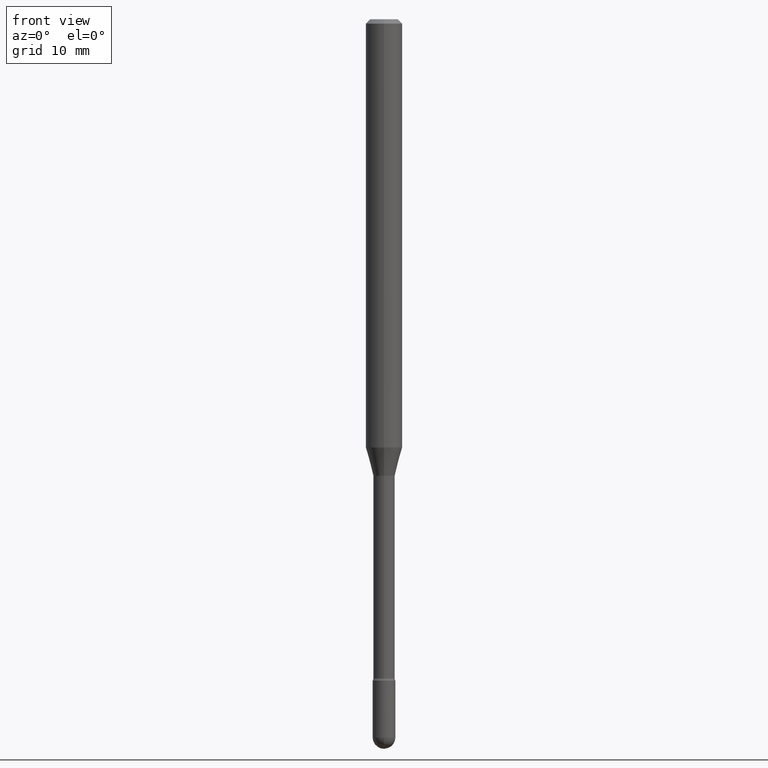
[diagram: clean part render]
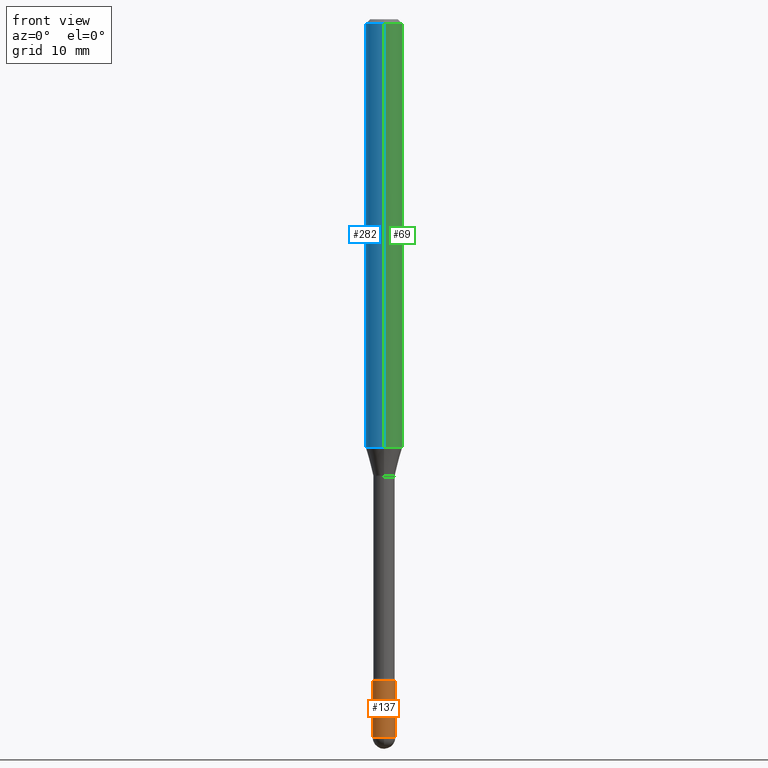
[diagram: same view with three faces highlighted in distinct colors, each labeled with its STEP entity id]
A machine part, front view with three faces highlighted in distinct colors.
Their STEP definitions:

[orange] entity #137 — the highlighted cylindrical surface (edge-blend (fillet) strip) has radius 0.9906 mm, axis along (-0, 0, 1).
#24 = VECTOR ( 'NONE', #52, 39.37007874015748143 ) ;
#51 = CARTESIAN_POINT ( 'NONE',  ( 0.000000000000000000, 0.000000000000000000, 0.000000000000000000 ) ) ;
#52 = DIRECTION ( 'NONE',  ( -2.445468806185136877E-29, 3.491481338843145188E-15, 1.000000000000000000 ) ) ;
#68 = CARTESIAN_POINT ( 'NONE',  ( 6.018298732021620914E-29, -8.592535574892981353E-15, -2.460999999999999854 ) ) ;
#75 = DIRECTION ( 'NONE',  ( -2.445468806185136877E-29, 3.491481338843145188E-15, 1.000000000000000000 ) ) ;
#77 = VERTEX_POINT ( 'NONE', #498 ) ;
#84 = DIRECTION ( 'NONE',  ( 1.000000000000000000, -6.982962677686258033E-15, 0.000000000000000000 ) ) ;
#109 = EDGE_CURVE ( 'NONE', #77, #175, #508, .T. ) ;
#120 = DIRECTION ( 'NONE',  ( 1.000000000000000000, -6.982962677686282488E-15, 0.000000000000000000 ) ) ;
#126 = LINE ( 'NONE', #247, #482 ) ;
#128 = VERTEX_POINT ( 'NONE', #183 ) ;
#137 = ADVANCED_FACE ( 'NONE', ( #355 ), #536, .T. ) ;
#170 = ORIENTED_EDGE ( 'NONE', *, *, #252, .T. ) ;
#175 = VERTEX_POINT ( 'NONE', #387 ) ;
#183 = CARTESIAN_POINT ( 'NONE',  ( -2.771116669463794638E-16, -0.03900000000000868744, -2.460999999999999854 ) ) ;
#208 = EDGE_CURVE ( 'NONE', #219, #262, #126, .T. ) ;
#215 = AXIS2_PLACEMENT_3D ( 'NONE', #478, #441, #84 ) ;
#219 = VERTEX_POINT ( 'NONE', #553 ) ;
#229 = CIRCLE ( 'NONE', #357, 0.03900000000000000688 ) ;
#233 = ORIENTED_EDGE ( 'NONE', *, *, #345, .T. ) ;
#247 = CARTESIAN_POINT ( 'NONE',  ( -0.03899999999999999994, 2.771116669464390721E-16, -1.918384685199413078E-30 ) ) ;
#252 = EDGE_CURVE ( 'NONE', #128, #77, #229, .T. ) ;
#262 = VERTEX_POINT ( 'NONE', #470 ) ;
#312 = EDGE_CURVE ( 'NONE', #262, #175, #419, .T. ) ;
#316 = ORIENTED_EDGE ( 'NONE', *, *, #109, .T. ) ;
#319 = CARTESIAN_POINT ( 'NONE',  ( 0.03899999999999999994, -2.723355444297643682E-16, 1.901708942560414931E-30 ) ) ;
#345 = EDGE_CURVE ( 'NONE', #219, #128, #513, .T. ) ;
#355 = FACE_OUTER_BOUND ( 'NONE', #554, .T. ) ;
#356 = AXIS2_PLACEMENT_3D ( 'NONE', #51, #363, #447 ) ;
#357 = AXIS2_PLACEMENT_3D ( 'NONE', #68, #549, #120 ) ;
#363 = DIRECTION ( 'NONE',  ( -2.445468806185136597E-29, 3.491481338843145583E-15, 1.000000000000000000 ) ) ;
#387 = CARTESIAN_POINT ( 'NONE',  ( 0.03899999999999999994, -8.184032258248332163E-15, -2.266000000000000014 ) ) ;
#388 = CARTESIAN_POINT ( 'NONE',  ( 6.018298732021620914E-29, -8.592535574892981353E-15, -2.460999999999999854 ) ) ;
#401 = AXIS2_PLACEMENT_3D ( 'NONE', #388, #431, #481 ) ;
#419 = CIRCLE ( 'NONE', #215, 0.03899999999999999994 ) ;
#431 = DIRECTION ( 'NONE',  ( -2.445468806185136597E-29, 3.491481338843145583E-15, 1.000000000000000000 ) ) ;
#441 = DIRECTION ( 'NONE',  ( -2.445468806185136597E-29, 3.491481338843145583E-15, 1.000000000000000000 ) ) ;
#447 = DIRECTION ( 'NONE',  ( 1.000000000000000000, -6.982962677686265922E-15, 4.876176775795935793E-29 ) ) ;
#470 = CARTESIAN_POINT ( 'NONE',  ( -0.03899999999999999994, -7.975004477409334639E-15, -2.266000000000000014 ) ) ;
#478 = CARTESIAN_POINT ( 'NONE',  ( 5.541432314815520264E-29, -7.911696713818568140E-15, -2.266000000000000014 ) ) ;
#481 = DIRECTION ( 'NONE',  ( 1.000000000000000000, -6.982962677686282488E-15, 0.000000000000000000 ) ) ;
#482 = VECTOR ( 'NONE', #75, 39.37007874015748143 ) ;
#498 = CARTESIAN_POINT ( 'NONE',  ( 0.03900000000000000688, -8.524451688785538770E-15, -2.460999999999999854 ) ) ;
#508 = LINE ( 'NONE', #319, #24 ) ;
#513 = CIRCLE ( 'NONE', #401, 0.03900000000000000688 ) ;
#533 = ORIENTED_EDGE ( 'NONE', *, *, #312, .F. ) ;
#536 = CYLINDRICAL_SURFACE ( 'NONE', #356, 0.03899999999999999994 ) ;
#549 = DIRECTION ( 'NONE',  ( -2.445468806185136597E-29, 3.491481338843145583E-15, 1.000000000000000000 ) ) ;
#553 = CARTESIAN_POINT ( 'NONE',  ( -0.03900000000000000688, -7.975004477409334639E-15, -2.460999999999999854 ) ) ;
#554 = EDGE_LOOP ( 'NONE', ( #561, #233, #170, #316, #533 ) ) ;
#561 = ORIENTED_EDGE ( 'NONE', *, *, #208, .F. ) ;

[blue] entity #282 — the highlighted cylindrical surface (edge-blend (fillet) strip) has radius 1.5875 mm, axis along (-0, 0, 1).
#29 = CARTESIAN_POINT ( 'NONE',  ( -1.169113584055446105E-44, 1.669184350826100908E-30, 4.780733988912460139E-16 ) ) ;
#33 = DIRECTION ( 'NONE',  ( -2.445437480436105303E-29, 3.491526199098709507E-15, 1.000000000000000000 ) ) ;
#48 = AXIS2_PLACEMENT_3D ( 'NONE', #29, #331, #117 ) ;
#85 = EDGE_CURVE ( 'NONE', #152, #393, #277, .T. ) ;
#117 = DIRECTION ( 'NONE',  ( -6.982962677686265922E-15, -1.000000000000000000, 3.491526199098708718E-15 ) ) ;
#145 = VECTOR ( 'NONE', #412, 39.37007874015748143 ) ;
#152 = VERTEX_POINT ( 'NONE', #539 ) ;
#195 = VERTEX_POINT ( 'NONE', #520 ) ;
#204 = EDGE_CURVE ( 'NONE', #152, #195, #547, .T. ) ;
#209 = CYLINDRICAL_SURFACE ( 'NONE', #48, 0.06250000000000000000 ) ;
#212 = EDGE_CURVE ( 'NONE', #393, #289, #527, .T. ) ;
#251 = CARTESIAN_POINT ( 'NONE',  ( 3.668156220654178413E-31, -5.237289298648092856E-17, -0.01500000000000008271 ) ) ;
#277 = LINE ( 'NONE', #405, #145 ) ;
#282 = ADVANCED_FACE ( 'NONE', ( #557 ), #209, .T. ) ;
#288 = CARTESIAN_POINT ( 'NONE',  ( -4.364351673553912750E-16, -0.06250000000000005551, -0.01499999999999986587 ) ) ;
#289 = VERTEX_POINT ( 'NONE', #288 ) ;
#313 = VECTOR ( 'NONE', #358, 39.37007874015748143 ) ;
#318 = CARTESIAN_POINT ( 'NONE',  ( -4.364351673553916201E-16, -0.06250000000000000000, 6.962937863349153827E-16 ) ) ;
#331 = DIRECTION ( 'NONE',  ( -2.445437480436105303E-29, 3.491526199098709507E-15, 1.000000000000000000 ) ) ;
#334 = ORIENTED_EDGE ( 'NONE', *, *, #204, .T. ) ;
#346 = CARTESIAN_POINT ( 'NONE',  ( 4.440892098500987066E-16, 0.06249999999999995143, -0.01500000000000030129 ) ) ;
#358 = DIRECTION ( 'NONE',  ( -2.445437480436105023E-29, 3.491526199098709901E-15, 1.000000000000000000 ) ) ;
#378 = ORIENTED_EDGE ( 'NONE', *, *, #85, .F. ) ;
#384 = DIRECTION ( 'NONE',  ( -6.982962677686265922E-15, -1.000000000000000000, 3.483106191921935554E-15 ) ) ;
#385 = ORIENTED_EDGE ( 'NONE', *, *, #550, .T. ) ;
#393 = VERTEX_POINT ( 'NONE', #346 ) ;
#404 = LINE ( 'NONE', #318, #313 ) ;
#405 = CARTESIAN_POINT ( 'NONE',  ( 4.440892098500625669E-16, 0.06250000000000000000, 2.598530114475767437E-16 ) ) ;
#412 = DIRECTION ( 'NONE',  ( -2.445437480436105023E-29, 3.491526199098709901E-15, 1.000000000000000000 ) ) ;
#425 = DIRECTION ( 'NONE',  ( -6.982962677686265922E-15, -1.000000000000000000, 4.370956789862821150E-15 ) ) ;
#443 = AXIS2_PLACEMENT_3D ( 'NONE', #251, #33, #384 ) ;
#456 = ORIENTED_EDGE ( 'NONE', *, *, #212, .F. ) ;
#461 = AXIS2_PLACEMENT_3D ( 'NONE', #521, #509, #425 ) ;
#486 = EDGE_LOOP ( 'NONE', ( #378, #334, #385, #456 ) ) ;
#509 = DIRECTION ( 'NONE',  ( -2.445437480436105303E-29, 3.491526199098709507E-15, 1.000000000000000000 ) ) ;
#520 = CARTESIAN_POINT ( 'NONE',  ( -4.364351673553559242E-16, -0.06250000000000516254, -1.467526486624344484 ) ) ;
#521 = CARTESIAN_POINT ( 'NONE',  ( 3.588744273923887991E-29, -5.123907175920180791E-15, -1.467526486624344928 ) ) ;
#527 = CIRCLE ( 'NONE', #443, 0.06250000000000000000 ) ;
#539 = CARTESIAN_POINT ( 'NONE',  ( 4.440892098500981149E-16, 0.06249999999999484440, -1.467526486624345150 ) ) ;
#547 = CIRCLE ( 'NONE', #461, 0.06250000000000000000 ) ;
#550 = EDGE_CURVE ( 'NONE', #195, #289, #404, .T. ) ;
#557 = FACE_OUTER_BOUND ( 'NONE', #486, .T. ) ;

[green] entity #69 — the highlighted cylindrical surface (edge-blend (fillet) strip) has radius 1.5875 mm, axis along (-0, 0, 1).
#5 = DIRECTION ( 'NONE',  ( -6.982962677686265922E-15, -1.000000000000000000, 4.370956789862821150E-15 ) ) ;
#11 = DIRECTION ( 'NONE',  ( -6.982962677686265922E-15, -1.000000000000000000, 3.483106191921935554E-15 ) ) ;
#28 = ORIENTED_EDGE ( 'NONE', *, *, #85, .T. ) ;
#43 = CARTESIAN_POINT ( 'NONE',  ( 3.668156220654178413E-31, -5.237289298648092856E-17, -0.01500000000000008271 ) ) ;
#65 = DIRECTION ( 'NONE',  ( -6.982962677686265922E-15, -1.000000000000000000, 3.491526199098708718E-15 ) ) ;
#69 = ADVANCED_FACE ( 'NONE', ( #453 ), #458, .T. ) ;
#85 = EDGE_CURVE ( 'NONE', #152, #393, #277, .T. ) ;
#87 = CIRCLE ( 'NONE', #305, 0.06250000000000000000 ) ;
#89 = DIRECTION ( 'NONE',  ( -2.445437480436105303E-29, 3.491526199098709507E-15, 1.000000000000000000 ) ) ;
#145 = VECTOR ( 'NONE', #412, 39.37007874015748143 ) ;
#152 = VERTEX_POINT ( 'NONE', #539 ) ;
#195 = VERTEX_POINT ( 'NONE', #520 ) ;
#222 = CARTESIAN_POINT ( 'NONE',  ( 3.588744273923887991E-29, -5.123907175920180791E-15, -1.467526486624344928 ) ) ;
#235 = ORIENTED_EDGE ( 'NONE', *, *, #344, .T. ) ;
#237 = AXIS2_PLACEMENT_3D ( 'NONE', #416, #360, #65 ) ;
#238 = CIRCLE ( 'NONE', #503, 0.06250000000000000000 ) ;
#253 = ORIENTED_EDGE ( 'NONE', *, *, #372, .F. ) ;
#277 = LINE ( 'NONE', #405, #145 ) ;
#288 = CARTESIAN_POINT ( 'NONE',  ( -4.364351673553912750E-16, -0.06250000000000005551, -0.01499999999999986587 ) ) ;
#289 = VERTEX_POINT ( 'NONE', #288 ) ;
#305 = AXIS2_PLACEMENT_3D ( 'NONE', #222, #403, #5 ) ;
#313 = VECTOR ( 'NONE', #358, 39.37007874015748143 ) ;
#318 = CARTESIAN_POINT ( 'NONE',  ( -4.364351673553916201E-16, -0.06250000000000000000, 6.962937863349153827E-16 ) ) ;
#344 = EDGE_CURVE ( 'NONE', #195, #152, #87, .T. ) ;
#346 = CARTESIAN_POINT ( 'NONE',  ( 4.440892098500987066E-16, 0.06249999999999995143, -0.01500000000000030129 ) ) ;
#358 = DIRECTION ( 'NONE',  ( -2.445437480436105023E-29, 3.491526199098709901E-15, 1.000000000000000000 ) ) ;
#360 = DIRECTION ( 'NONE',  ( -2.445437480436105303E-29, 3.491526199098709507E-15, 1.000000000000000000 ) ) ;
#372 = EDGE_CURVE ( 'NONE', #289, #393, #238, .T. ) ;
#393 = VERTEX_POINT ( 'NONE', #346 ) ;
#395 = EDGE_LOOP ( 'NONE', ( #235, #28, #253, #510 ) ) ;
#403 = DIRECTION ( 'NONE',  ( -2.445437480436105303E-29, 3.491526199098709507E-15, 1.000000000000000000 ) ) ;
#404 = LINE ( 'NONE', #318, #313 ) ;
#405 = CARTESIAN_POINT ( 'NONE',  ( 4.440892098500625669E-16, 0.06250000000000000000, 2.598530114475767437E-16 ) ) ;
#412 = DIRECTION ( 'NONE',  ( -2.445437480436105023E-29, 3.491526199098709901E-15, 1.000000000000000000 ) ) ;
#416 = CARTESIAN_POINT ( 'NONE',  ( -1.169113584055446105E-44, 1.669184350826100908E-30, 4.780733988912460139E-16 ) ) ;
#453 = FACE_OUTER_BOUND ( 'NONE', #395, .T. ) ;
#458 = CYLINDRICAL_SURFACE ( 'NONE', #237, 0.06250000000000000000 ) ;
#503 = AXIS2_PLACEMENT_3D ( 'NONE', #43, #89, #11 ) ;
#510 = ORIENTED_EDGE ( 'NONE', *, *, #550, .F. ) ;
#520 = CARTESIAN_POINT ( 'NONE',  ( -4.364351673553559242E-16, -0.06250000000000516254, -1.467526486624344484 ) ) ;
#539 = CARTESIAN_POINT ( 'NONE',  ( 4.440892098500981149E-16, 0.06249999999999484440, -1.467526486624345150 ) ) ;
#550 = EDGE_CURVE ( 'NONE', #195, #289, #404, .T. ) ;